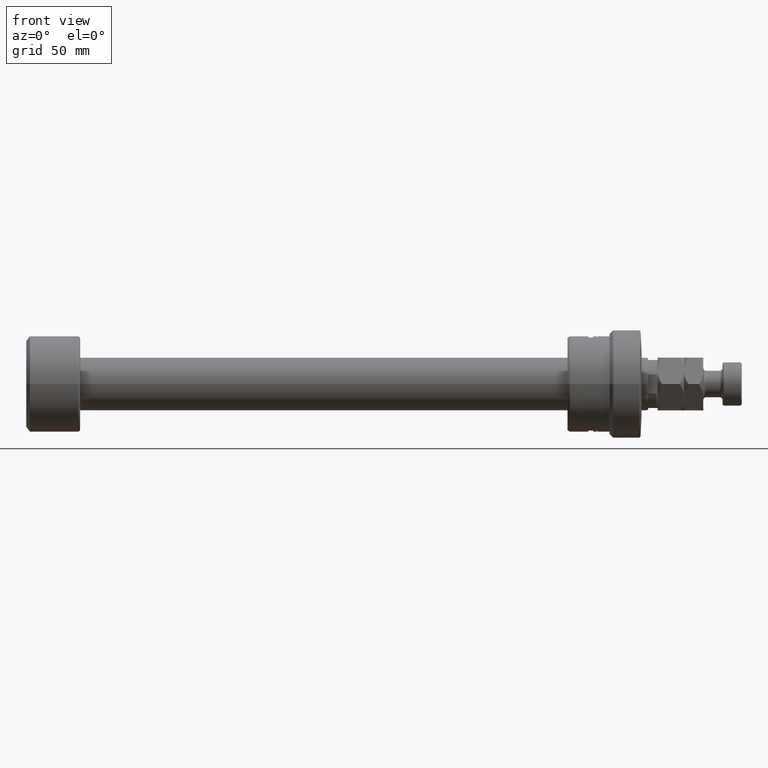
[diagram: clean part render]
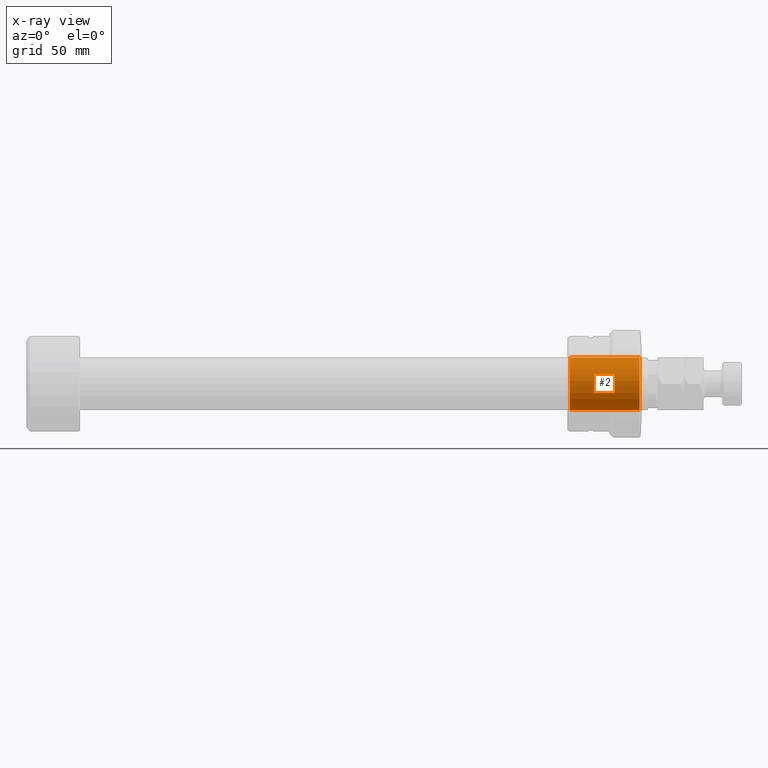
[diagram: x-ray — body ghosted, one internal face saturated and labeled with its STEP entity id]
A machine part, front view, then the same camera in x-ray: the body is ghosted and one INTERNAL B-rep face — a face not visible from any outside direction — is saturated and labeled: STEP entity #2.
In plain terms, the highlighted cylindrical surface (edge-blend (fillet) strip) has radius 11 mm, axis along (1, 0, 0).
Its self-contained STEP definition (entity closure, byte-faithful):
#2 = ADVANCED_FACE ( 'NONE', ( #1954 ), #2914, .F. ) ;
#57 = DIRECTION ( 'NONE',  ( 1.000000000000000000, -0.000000000000000000, -0.000000000000000000 ) ) ;
#167 = EDGE_CURVE ( 'NONE', #2384, #2799, #3431, .T. ) ;
#514 = CARTESIAN_POINT ( 'NONE',  ( -30.50000000000002132, 1.347111479062088405E-15, 11.00000000000000000 ) ) ;
#676 = CARTESIAN_POINT ( 'NONE',  ( -62.61269837220812207, 0.000000000000000000, 0.000000000000000000 ) ) ;
#776 = CIRCLE ( 'NONE', #2095, 11.00000000000000000 ) ;
#995 = CARTESIAN_POINT ( 'NONE',  ( -30.50000000000002132, 0.000000000000000000, -11.00000000000000000 ) ) ;
#1197 = CARTESIAN_POINT ( 'NONE',  ( -62.61269837220812207, 1.347111479062088405E-15, 11.00000000000000000 ) ) ;
#1201 = VERTEX_POINT ( 'NONE', #514 ) ;
#1223 = CARTESIAN_POINT ( 'NONE',  ( -62.61269837220812207, 0.000000000000000000, -11.00000000000000000 ) ) ;
#1280 = LINE ( 'NONE', #1197, #1773 ) ;
#1363 = CARTESIAN_POINT ( 'NONE',  ( -30.50000000000002132, 0.000000000000000000, 0.000000000000000000 ) ) ;
#1385 = EDGE_LOOP ( 'NONE', ( #1844, #2511, #2784, #2662 ) ) ;
#1404 = VERTEX_POINT ( 'NONE', #2675 ) ;
#1448 = EDGE_CURVE ( 'NONE', #2384, #1201, #1826, .T. ) ;
#1597 = DIRECTION ( 'NONE',  ( 1.000000000000000000, -0.000000000000000000, -0.000000000000000000 ) ) ;
#1623 = DIRECTION ( 'NONE',  ( 1.000000000000000000, 0.000000000000000000, 0.000000000000000000 ) ) ;
#1639 = VECTOR ( 'NONE', #1597, 1000.000000000000000 ) ;
#1686 = DIRECTION ( 'NONE',  ( 0.000000000000000000, 0.000000000000000000, -1.000000000000000000 ) ) ;
#1773 = VECTOR ( 'NONE', #2179, 1000.000000000000000 ) ;
#1826 = CIRCLE ( 'NONE', #3979, 11.00000000000000000 ) ;
#1844 = ORIENTED_EDGE ( 'NONE', *, *, #1448, .T. ) ;
#1954 = FACE_OUTER_BOUND ( 'NONE', #1385, .T. ) ;
#2095 = AXIS2_PLACEMENT_3D ( 'NONE', #3247, #1623, #2883 ) ;
#2179 = DIRECTION ( 'NONE',  ( 1.000000000000000000, -0.000000000000000000, -0.000000000000000000 ) ) ;
#2384 = VERTEX_POINT ( 'NONE', #995 ) ;
#2466 = AXIS2_PLACEMENT_3D ( 'NONE', #676, #57, #3300 ) ;
#2511 = ORIENTED_EDGE ( 'NONE', *, *, #2918, .T. ) ;
#2524 = DIRECTION ( 'NONE',  ( -1.000000000000000000, 0.000000000000000000, 0.000000000000000000 ) ) ;
#2662 = ORIENTED_EDGE ( 'NONE', *, *, #167, .F. ) ;
#2675 = CARTESIAN_POINT ( 'NONE',  ( -1.500000000000000000, 1.347111479062088405E-15, 11.00000000000000000 ) ) ;
#2784 = ORIENTED_EDGE ( 'NONE', *, *, #3447, .T. ) ;
#2799 = VERTEX_POINT ( 'NONE', #3788 ) ;
#2883 = DIRECTION ( 'NONE',  ( 0.000000000000000000, 0.000000000000000000, -1.000000000000000000 ) ) ;
#2914 = CYLINDRICAL_SURFACE ( 'NONE', #2466, 11.00000000000000000 ) ;
#2918 = EDGE_CURVE ( 'NONE', #1201, #1404, #1280, .T. ) ;
#3247 = CARTESIAN_POINT ( 'NONE',  ( -1.500000000000000000, 0.000000000000000000, 0.000000000000000000 ) ) ;
#3300 = DIRECTION ( 'NONE',  ( 0.000000000000000000, 0.000000000000000000, -1.000000000000000000 ) ) ;
#3431 = LINE ( 'NONE', #1223, #1639 ) ;
#3447 = EDGE_CURVE ( 'NONE', #1404, #2799, #776, .T. ) ;
#3788 = CARTESIAN_POINT ( 'NONE',  ( -1.500000000000000000, 0.000000000000000000, -11.00000000000000000 ) ) ;
#3979 = AXIS2_PLACEMENT_3D ( 'NONE', #1363, #2524, #1686 ) ;